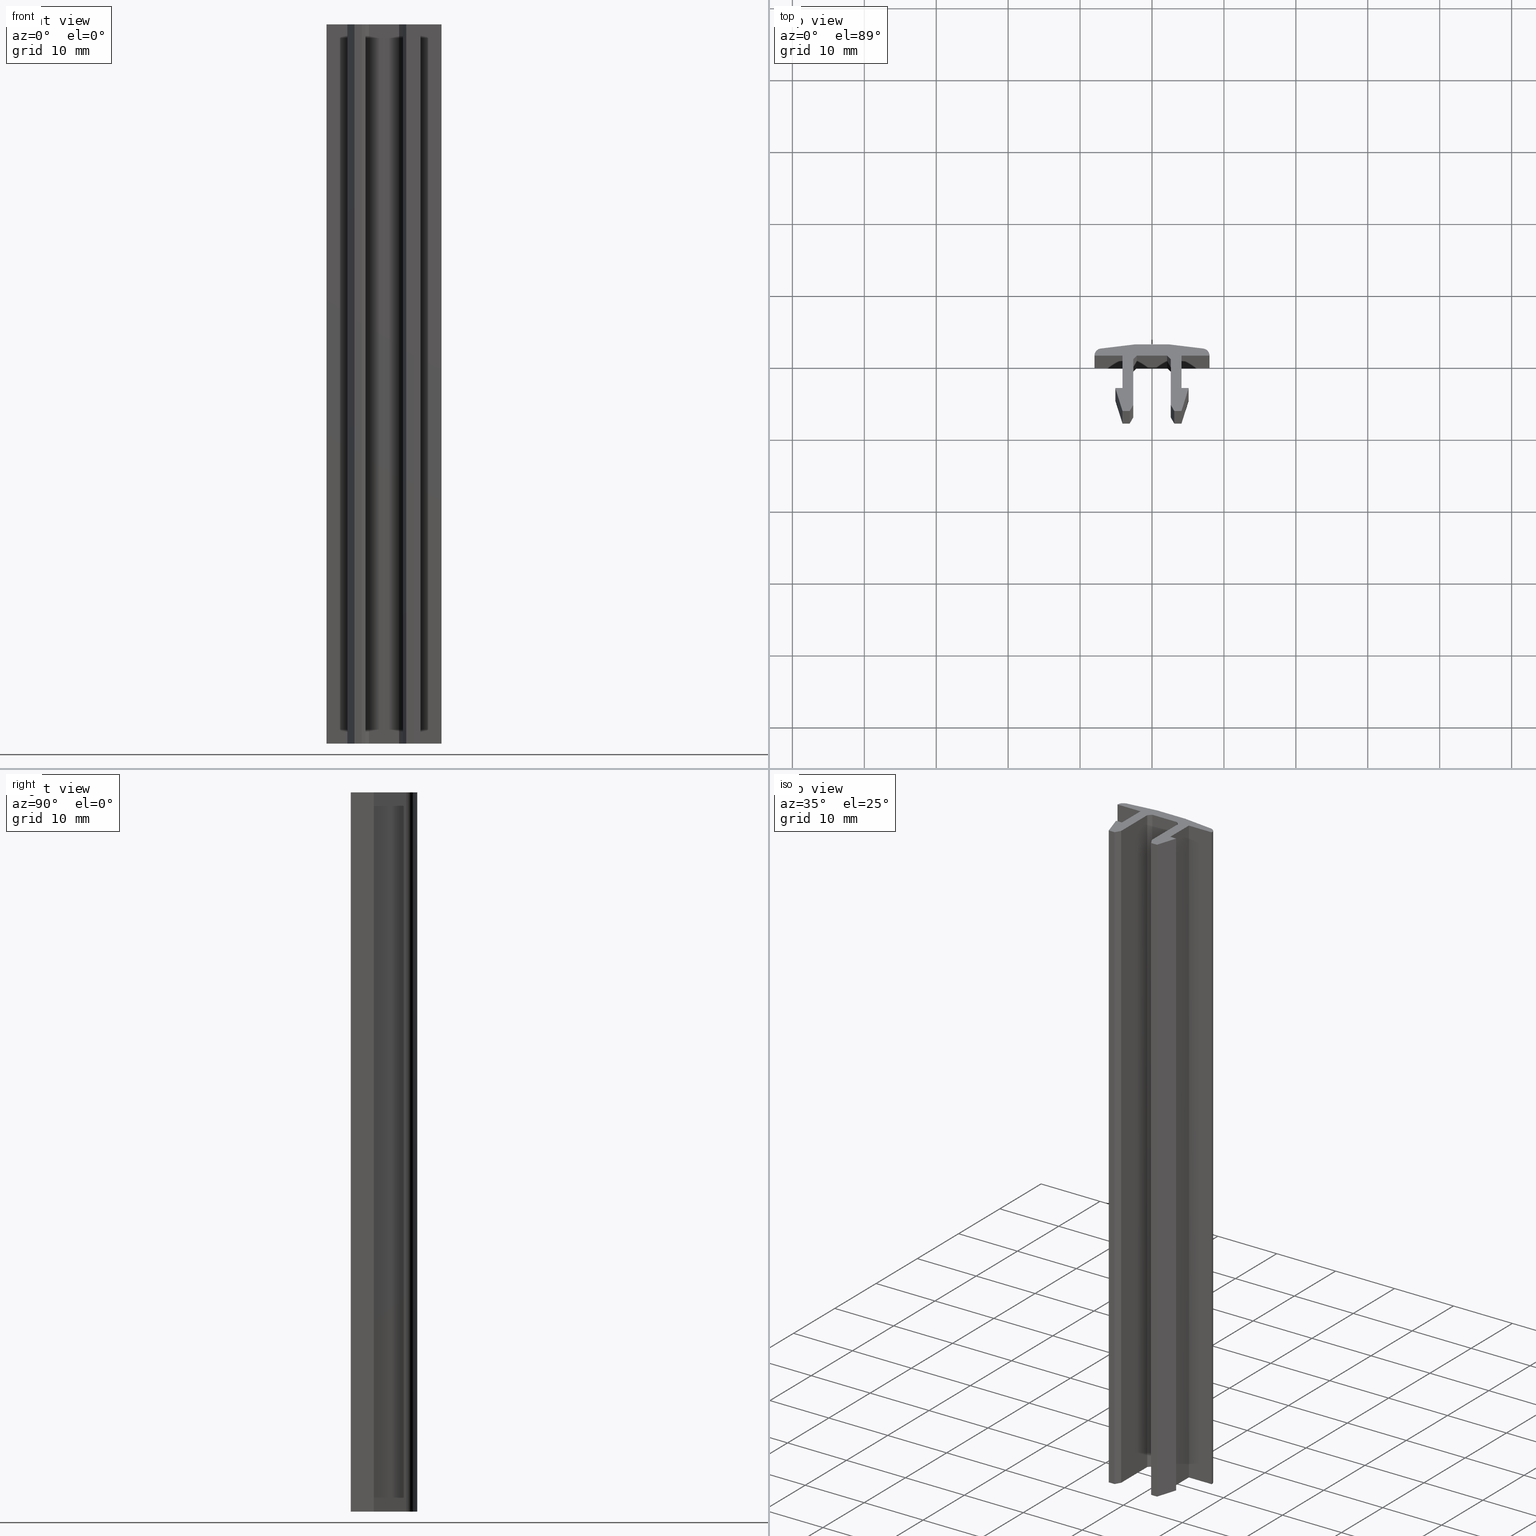
[diagram: canonical four-view strip — front | top / right | iso, engineering-drawing reading convention]
A machine part, canonical four-view strip (front | top / right | iso — engineering-drawing reading convention). The complete STEP part file that produces these views, byte-faithful:
ISO-10303-21;
HEADER;
/* Generated by software containing ST-Developer
 * from STEP Tools, Inc. (www.steptools.com) 
 */

FILE_DESCRIPTION(
/* description */ ('GUARNIZIONE CAVA PER - PVC SEMIRIGIDO GR'),
/* implementation_level */ '2;1');

FILE_NAME(
/* name */ 'C:\\Users\\Tecnico5\\Documents\\CGUCA0000003.stp',
/* time_stamp */ '2020-03-04T11:37:23+01:00',
/* author */ ('tecnico5'),
/* organization */ (''),
/* preprocessor_version */ 'ST-DEVELOPER v17.2',
/* originating_system */ 'Autodesk Inventor 2019',
/* authorisation */ '');

FILE_SCHEMA (('AUTOMOTIVE_DESIGN { 1 0 10303 214 3 1 1 }'));
ENDSEC;

DATA;
#10=MECHANICAL_DESIGN_GEOMETRIC_PRESENTATION_REPRESENTATION('',(#13),#723);
#11=SHAPE_REPRESENTATION_RELATIONSHIP('SRR','None',#730,#12);
#12=ADVANCED_BREP_SHAPE_REPRESENTATION('',(#14),#722);
#13=STYLED_ITEM('',(#739),#14);
#14=MANIFOLD_SOLID_BREP('Solido1',#437);
#15=CIRCLE('',#462,1.);
#16=CIRCLE('',#463,1.);
#17=CIRCLE('',#465,40.);
#18=CIRCLE('',#466,40.);
#19=CIRCLE('',#468,1.);
#20=CIRCLE('',#469,1.);
#21=CYLINDRICAL_SURFACE('',#461,1.);
#22=CYLINDRICAL_SURFACE('',#464,40.);
#23=CYLINDRICAL_SURFACE('',#467,1.);
#24=FACE_OUTER_BOUND('',#46,.T.);
#25=FACE_OUTER_BOUND('',#47,.T.);
#26=FACE_OUTER_BOUND('',#48,.T.);
#27=FACE_OUTER_BOUND('',#49,.T.);
#28=FACE_OUTER_BOUND('',#50,.T.);
#29=FACE_OUTER_BOUND('',#51,.T.);
#30=FACE_OUTER_BOUND('',#52,.T.);
#31=FACE_OUTER_BOUND('',#53,.T.);
#32=FACE_OUTER_BOUND('',#54,.T.);
#33=FACE_OUTER_BOUND('',#55,.T.);
#34=FACE_OUTER_BOUND('',#56,.T.);
#35=FACE_OUTER_BOUND('',#57,.T.);
#36=FACE_OUTER_BOUND('',#58,.T.);
#37=FACE_OUTER_BOUND('',#59,.T.);
#38=FACE_OUTER_BOUND('',#60,.T.);
#39=FACE_OUTER_BOUND('',#61,.T.);
#40=FACE_OUTER_BOUND('',#62,.T.);
#41=FACE_OUTER_BOUND('',#63,.T.);
#42=FACE_OUTER_BOUND('',#64,.T.);
#43=FACE_OUTER_BOUND('',#65,.T.);
#44=FACE_OUTER_BOUND('',#66,.T.);
#45=FACE_OUTER_BOUND('',#67,.T.);
#46=EDGE_LOOP('',(#276,#277,#278,#279));
#47=EDGE_LOOP('',(#280,#281,#282,#283));
#48=EDGE_LOOP('',(#284,#285,#286,#287));
#49=EDGE_LOOP('',(#288,#289,#290,#291));
#50=EDGE_LOOP('',(#292,#293,#294,#295));
#51=EDGE_LOOP('',(#296,#297,#298,#299));
#52=EDGE_LOOP('',(#300,#301,#302,#303));
#53=EDGE_LOOP('',(#304,#305,#306,#307));
#54=EDGE_LOOP('',(#308,#309,#310,#311));
#55=EDGE_LOOP('',(#312,#313,#314,#315));
#56=EDGE_LOOP('',(#316,#317,#318,#319));
#57=EDGE_LOOP('',(#320,#321,#322,#323));
#58=EDGE_LOOP('',(#324,#325,#326,#327));
#59=EDGE_LOOP('',(#328,#329,#330,#331));
#60=EDGE_LOOP('',(#332,#333,#334,#335));
#61=EDGE_LOOP('',(#336,#337,#338,#339));
#62=EDGE_LOOP('',(#340,#341,#342,#343));
#63=EDGE_LOOP('',(#344,#345,#346,#347));
#64=EDGE_LOOP('',(#348,#349,#350,#351));
#65=EDGE_LOOP('',(#352,#353,#354,#355));
#66=EDGE_LOOP('',(#356,#357,#358,#359,#360,#361,#362,#363,#364,#365,#366,
#367,#368,#369,#370,#371,#372,#373,#374,#375));
#67=EDGE_LOOP('',(#376,#377,#378,#379,#380,#381,#382,#383,#384,#385,#386,
#387,#388,#389,#390,#391,#392,#393,#394,#395));
#68=LINE('',#601,#122);
#69=LINE('',#603,#123);
#70=LINE('',#605,#124);
#71=LINE('',#606,#125);
#72=LINE('',#609,#126);
#73=LINE('',#611,#127);
#74=LINE('',#612,#128);
#75=LINE('',#615,#129);
#76=LINE('',#617,#130);
#77=LINE('',#618,#131);
#78=LINE('',#621,#132);
#79=LINE('',#623,#133);
#80=LINE('',#624,#134);
#81=LINE('',#630,#135);
#82=LINE('',#636,#136);
#83=LINE('',#642,#137);
#84=LINE('',#645,#138);
#85=LINE('',#647,#139);
#86=LINE('',#648,#140);
#87=LINE('',#651,#141);
#88=LINE('',#653,#142);
#89=LINE('',#654,#143);
#90=LINE('',#657,#144);
#91=LINE('',#659,#145);
#92=LINE('',#660,#146);
#93=LINE('',#663,#147);
#94=LINE('',#665,#148);
#95=LINE('',#666,#149);
#96=LINE('',#669,#150);
#97=LINE('',#671,#151);
#98=LINE('',#672,#152);
#99=LINE('',#675,#153);
#100=LINE('',#677,#154);
#101=LINE('',#678,#155);
#102=LINE('',#681,#156);
#103=LINE('',#683,#157);
#104=LINE('',#684,#158);
#105=LINE('',#687,#159);
#106=LINE('',#689,#160);
#107=LINE('',#690,#161);
#108=LINE('',#693,#162);
#109=LINE('',#695,#163);
#110=LINE('',#696,#164);
#111=LINE('',#699,#165);
#112=LINE('',#701,#166);
#113=LINE('',#702,#167);
#114=LINE('',#705,#168);
#115=LINE('',#707,#169);
#116=LINE('',#708,#170);
#117=LINE('',#711,#171);
#118=LINE('',#713,#172);
#119=LINE('',#714,#173);
#120=LINE('',#716,#174);
#121=LINE('',#717,#175);
#122=VECTOR('',#489,10.);
#123=VECTOR('',#490,10.);
#124=VECTOR('',#491,10.);
#125=VECTOR('',#492,10.);
#126=VECTOR('',#495,10.);
#127=VECTOR('',#496,10.);
#128=VECTOR('',#497,10.);
#129=VECTOR('',#500,10.);
#130=VECTOR('',#501,10.);
#131=VECTOR('',#502,10.);
#132=VECTOR('',#505,10.);
#133=VECTOR('',#506,10.);
#134=VECTOR('',#507,10.);
#135=VECTOR('',#514,10.);
#136=VECTOR('',#521,10.);
#137=VECTOR('',#528,10.);
#138=VECTOR('',#531,10.);
#139=VECTOR('',#532,10.);
#140=VECTOR('',#533,10.);
#141=VECTOR('',#536,10.);
#142=VECTOR('',#537,10.);
#143=VECTOR('',#538,10.);
#144=VECTOR('',#541,10.);
#145=VECTOR('',#542,10.);
#146=VECTOR('',#543,10.);
#147=VECTOR('',#546,10.);
#148=VECTOR('',#547,10.);
#149=VECTOR('',#548,10.);
#150=VECTOR('',#551,10.);
#151=VECTOR('',#552,10.);
#152=VECTOR('',#553,10.);
#153=VECTOR('',#556,10.);
#154=VECTOR('',#557,10.);
#155=VECTOR('',#558,10.);
#156=VECTOR('',#561,10.);
#157=VECTOR('',#562,10.);
#158=VECTOR('',#563,10.);
#159=VECTOR('',#566,10.);
#160=VECTOR('',#567,10.);
#161=VECTOR('',#568,10.);
#162=VECTOR('',#571,10.);
#163=VECTOR('',#572,10.);
#164=VECTOR('',#573,10.);
#165=VECTOR('',#576,10.);
#166=VECTOR('',#577,10.);
#167=VECTOR('',#578,10.);
#168=VECTOR('',#581,10.);
#169=VECTOR('',#582,10.);
#170=VECTOR('',#583,10.);
#171=VECTOR('',#586,10.);
#172=VECTOR('',#587,10.);
#173=VECTOR('',#588,10.);
#174=VECTOR('',#591,10.);
#175=VECTOR('',#592,10.);
#176=VERTEX_POINT('',#599);
#177=VERTEX_POINT('',#600);
#178=VERTEX_POINT('',#602);
#179=VERTEX_POINT('',#604);
#180=VERTEX_POINT('',#608);
#181=VERTEX_POINT('',#610);
#182=VERTEX_POINT('',#614);
#183=VERTEX_POINT('',#616);
#184=VERTEX_POINT('',#620);
#185=VERTEX_POINT('',#622);
#186=VERTEX_POINT('',#626);
#187=VERTEX_POINT('',#628);
#188=VERTEX_POINT('',#632);
#189=VERTEX_POINT('',#634);
#190=VERTEX_POINT('',#638);
#191=VERTEX_POINT('',#640);
#192=VERTEX_POINT('',#644);
#193=VERTEX_POINT('',#646);
#194=VERTEX_POINT('',#650);
#195=VERTEX_POINT('',#652);
#196=VERTEX_POINT('',#656);
#197=VERTEX_POINT('',#658);
#198=VERTEX_POINT('',#662);
#199=VERTEX_POINT('',#664);
#200=VERTEX_POINT('',#668);
#201=VERTEX_POINT('',#670);
#202=VERTEX_POINT('',#674);
#203=VERTEX_POINT('',#676);
#204=VERTEX_POINT('',#680);
#205=VERTEX_POINT('',#682);
#206=VERTEX_POINT('',#686);
#207=VERTEX_POINT('',#688);
#208=VERTEX_POINT('',#692);
#209=VERTEX_POINT('',#694);
#210=VERTEX_POINT('',#698);
#211=VERTEX_POINT('',#700);
#212=VERTEX_POINT('',#704);
#213=VERTEX_POINT('',#706);
#214=VERTEX_POINT('',#710);
#215=VERTEX_POINT('',#712);
#216=EDGE_CURVE('',#176,#177,#68,.T.);
#217=EDGE_CURVE('',#177,#178,#69,.T.);
#218=EDGE_CURVE('',#179,#178,#70,.T.);
#219=EDGE_CURVE('',#176,#179,#71,.T.);
#220=EDGE_CURVE('',#180,#176,#72,.T.);
#221=EDGE_CURVE('',#181,#179,#73,.T.);
#222=EDGE_CURVE('',#180,#181,#74,.T.);
#223=EDGE_CURVE('',#182,#180,#75,.T.);
#224=EDGE_CURVE('',#183,#181,#76,.T.);
#225=EDGE_CURVE('',#182,#183,#77,.T.);
#226=EDGE_CURVE('',#184,#182,#78,.T.);
#227=EDGE_CURVE('',#185,#183,#79,.T.);
#228=EDGE_CURVE('',#184,#185,#80,.T.);
#229=EDGE_CURVE('',#186,#184,#15,.T.);
#230=EDGE_CURVE('',#187,#185,#16,.T.);
#231=EDGE_CURVE('',#186,#187,#81,.T.);
#232=EDGE_CURVE('',#188,#186,#17,.T.);
#233=EDGE_CURVE('',#189,#187,#18,.T.);
#234=EDGE_CURVE('',#188,#189,#82,.T.);
#235=EDGE_CURVE('',#190,#188,#19,.T.);
#236=EDGE_CURVE('',#191,#189,#20,.T.);
#237=EDGE_CURVE('',#190,#191,#83,.T.);
#238=EDGE_CURVE('',#192,#190,#84,.T.);
#239=EDGE_CURVE('',#193,#191,#85,.T.);
#240=EDGE_CURVE('',#192,#193,#86,.T.);
#241=EDGE_CURVE('',#194,#192,#87,.T.);
#242=EDGE_CURVE('',#195,#193,#88,.T.);
#243=EDGE_CURVE('',#194,#195,#89,.T.);
#244=EDGE_CURVE('',#196,#194,#90,.T.);
#245=EDGE_CURVE('',#197,#195,#91,.T.);
#246=EDGE_CURVE('',#196,#197,#92,.T.);
#247=EDGE_CURVE('',#198,#196,#93,.T.);
#248=EDGE_CURVE('',#199,#197,#94,.T.);
#249=EDGE_CURVE('',#198,#199,#95,.T.);
#250=EDGE_CURVE('',#200,#198,#96,.T.);
#251=EDGE_CURVE('',#201,#199,#97,.T.);
#252=EDGE_CURVE('',#200,#201,#98,.T.);
#253=EDGE_CURVE('',#202,#200,#99,.T.);
#254=EDGE_CURVE('',#203,#201,#100,.T.);
#255=EDGE_CURVE('',#202,#203,#101,.T.);
#256=EDGE_CURVE('',#204,#202,#102,.T.);
#257=EDGE_CURVE('',#205,#203,#103,.T.);
#258=EDGE_CURVE('',#204,#205,#104,.T.);
#259=EDGE_CURVE('',#206,#204,#105,.T.);
#260=EDGE_CURVE('',#207,#205,#106,.T.);
#261=EDGE_CURVE('',#206,#207,#107,.T.);
#262=EDGE_CURVE('',#208,#206,#108,.T.);
#263=EDGE_CURVE('',#209,#207,#109,.T.);
#264=EDGE_CURVE('',#208,#209,#110,.T.);
#265=EDGE_CURVE('',#210,#208,#111,.T.);
#266=EDGE_CURVE('',#211,#209,#112,.T.);
#267=EDGE_CURVE('',#210,#211,#113,.T.);
#268=EDGE_CURVE('',#212,#210,#114,.T.);
#269=EDGE_CURVE('',#213,#211,#115,.T.);
#270=EDGE_CURVE('',#212,#213,#116,.T.);
#271=EDGE_CURVE('',#214,#212,#117,.T.);
#272=EDGE_CURVE('',#215,#213,#118,.T.);
#273=EDGE_CURVE('',#214,#215,#119,.T.);
#274=EDGE_CURVE('',#177,#214,#120,.T.);
#275=EDGE_CURVE('',#178,#215,#121,.T.);
#276=ORIENTED_EDGE('',*,*,#216,.T.);
#277=ORIENTED_EDGE('',*,*,#217,.T.);
#278=ORIENTED_EDGE('',*,*,#218,.F.);
#279=ORIENTED_EDGE('',*,*,#219,.F.);
#280=ORIENTED_EDGE('',*,*,#220,.T.);
#281=ORIENTED_EDGE('',*,*,#219,.T.);
#282=ORIENTED_EDGE('',*,*,#221,.F.);
#283=ORIENTED_EDGE('',*,*,#222,.F.);
#284=ORIENTED_EDGE('',*,*,#223,.T.);
#285=ORIENTED_EDGE('',*,*,#222,.T.);
#286=ORIENTED_EDGE('',*,*,#224,.F.);
#287=ORIENTED_EDGE('',*,*,#225,.F.);
#288=ORIENTED_EDGE('',*,*,#226,.T.);
#289=ORIENTED_EDGE('',*,*,#225,.T.);
#290=ORIENTED_EDGE('',*,*,#227,.F.);
#291=ORIENTED_EDGE('',*,*,#228,.F.);
#292=ORIENTED_EDGE('',*,*,#229,.T.);
#293=ORIENTED_EDGE('',*,*,#228,.T.);
#294=ORIENTED_EDGE('',*,*,#230,.F.);
#295=ORIENTED_EDGE('',*,*,#231,.F.);
#296=ORIENTED_EDGE('',*,*,#232,.T.);
#297=ORIENTED_EDGE('',*,*,#231,.T.);
#298=ORIENTED_EDGE('',*,*,#233,.F.);
#299=ORIENTED_EDGE('',*,*,#234,.F.);
#300=ORIENTED_EDGE('',*,*,#235,.T.);
#301=ORIENTED_EDGE('',*,*,#234,.T.);
#302=ORIENTED_EDGE('',*,*,#236,.F.);
#303=ORIENTED_EDGE('',*,*,#237,.F.);
#304=ORIENTED_EDGE('',*,*,#238,.T.);
#305=ORIENTED_EDGE('',*,*,#237,.T.);
#306=ORIENTED_EDGE('',*,*,#239,.F.);
#307=ORIENTED_EDGE('',*,*,#240,.F.);
#308=ORIENTED_EDGE('',*,*,#241,.T.);
#309=ORIENTED_EDGE('',*,*,#240,.T.);
#310=ORIENTED_EDGE('',*,*,#242,.F.);
#311=ORIENTED_EDGE('',*,*,#243,.F.);
#312=ORIENTED_EDGE('',*,*,#244,.T.);
#313=ORIENTED_EDGE('',*,*,#243,.T.);
#314=ORIENTED_EDGE('',*,*,#245,.F.);
#315=ORIENTED_EDGE('',*,*,#246,.F.);
#316=ORIENTED_EDGE('',*,*,#247,.T.);
#317=ORIENTED_EDGE('',*,*,#246,.T.);
#318=ORIENTED_EDGE('',*,*,#248,.F.);
#319=ORIENTED_EDGE('',*,*,#249,.F.);
#320=ORIENTED_EDGE('',*,*,#250,.T.);
#321=ORIENTED_EDGE('',*,*,#249,.T.);
#322=ORIENTED_EDGE('',*,*,#251,.F.);
#323=ORIENTED_EDGE('',*,*,#252,.F.);
#324=ORIENTED_EDGE('',*,*,#253,.T.);
#325=ORIENTED_EDGE('',*,*,#252,.T.);
#326=ORIENTED_EDGE('',*,*,#254,.F.);
#327=ORIENTED_EDGE('',*,*,#255,.F.);
#328=ORIENTED_EDGE('',*,*,#256,.T.);
#329=ORIENTED_EDGE('',*,*,#255,.T.);
#330=ORIENTED_EDGE('',*,*,#257,.F.);
#331=ORIENTED_EDGE('',*,*,#258,.F.);
#332=ORIENTED_EDGE('',*,*,#259,.T.);
#333=ORIENTED_EDGE('',*,*,#258,.T.);
#334=ORIENTED_EDGE('',*,*,#260,.F.);
#335=ORIENTED_EDGE('',*,*,#261,.F.);
#336=ORIENTED_EDGE('',*,*,#262,.T.);
#337=ORIENTED_EDGE('',*,*,#261,.T.);
#338=ORIENTED_EDGE('',*,*,#263,.F.);
#339=ORIENTED_EDGE('',*,*,#264,.F.);
#340=ORIENTED_EDGE('',*,*,#265,.T.);
#341=ORIENTED_EDGE('',*,*,#264,.T.);
#342=ORIENTED_EDGE('',*,*,#266,.F.);
#343=ORIENTED_EDGE('',*,*,#267,.F.);
#344=ORIENTED_EDGE('',*,*,#268,.T.);
#345=ORIENTED_EDGE('',*,*,#267,.T.);
#346=ORIENTED_EDGE('',*,*,#269,.F.);
#347=ORIENTED_EDGE('',*,*,#270,.F.);
#348=ORIENTED_EDGE('',*,*,#271,.T.);
#349=ORIENTED_EDGE('',*,*,#270,.T.);
#350=ORIENTED_EDGE('',*,*,#272,.F.);
#351=ORIENTED_EDGE('',*,*,#273,.F.);
#352=ORIENTED_EDGE('',*,*,#274,.T.);
#353=ORIENTED_EDGE('',*,*,#273,.T.);
#354=ORIENTED_EDGE('',*,*,#275,.F.);
#355=ORIENTED_EDGE('',*,*,#217,.F.);
#356=ORIENTED_EDGE('',*,*,#275,.T.);
#357=ORIENTED_EDGE('',*,*,#272,.T.);
#358=ORIENTED_EDGE('',*,*,#269,.T.);
#359=ORIENTED_EDGE('',*,*,#266,.T.);
#360=ORIENTED_EDGE('',*,*,#263,.T.);
#361=ORIENTED_EDGE('',*,*,#260,.T.);
#362=ORIENTED_EDGE('',*,*,#257,.T.);
#363=ORIENTED_EDGE('',*,*,#254,.T.);
#364=ORIENTED_EDGE('',*,*,#251,.T.);
#365=ORIENTED_EDGE('',*,*,#248,.T.);
#366=ORIENTED_EDGE('',*,*,#245,.T.);
#367=ORIENTED_EDGE('',*,*,#242,.T.);
#368=ORIENTED_EDGE('',*,*,#239,.T.);
#369=ORIENTED_EDGE('',*,*,#236,.T.);
#370=ORIENTED_EDGE('',*,*,#233,.T.);
#371=ORIENTED_EDGE('',*,*,#230,.T.);
#372=ORIENTED_EDGE('',*,*,#227,.T.);
#373=ORIENTED_EDGE('',*,*,#224,.T.);
#374=ORIENTED_EDGE('',*,*,#221,.T.);
#375=ORIENTED_EDGE('',*,*,#218,.T.);
#376=ORIENTED_EDGE('',*,*,#274,.F.);
#377=ORIENTED_EDGE('',*,*,#216,.F.);
#378=ORIENTED_EDGE('',*,*,#220,.F.);
#379=ORIENTED_EDGE('',*,*,#223,.F.);
#380=ORIENTED_EDGE('',*,*,#226,.F.);
#381=ORIENTED_EDGE('',*,*,#229,.F.);
#382=ORIENTED_EDGE('',*,*,#232,.F.);
#383=ORIENTED_EDGE('',*,*,#235,.F.);
#384=ORIENTED_EDGE('',*,*,#238,.F.);
#385=ORIENTED_EDGE('',*,*,#241,.F.);
#386=ORIENTED_EDGE('',*,*,#244,.F.);
#387=ORIENTED_EDGE('',*,*,#247,.F.);
#388=ORIENTED_EDGE('',*,*,#250,.F.);
#389=ORIENTED_EDGE('',*,*,#253,.F.);
#390=ORIENTED_EDGE('',*,*,#256,.F.);
#391=ORIENTED_EDGE('',*,*,#259,.F.);
#392=ORIENTED_EDGE('',*,*,#262,.F.);
#393=ORIENTED_EDGE('',*,*,#265,.F.);
#394=ORIENTED_EDGE('',*,*,#268,.F.);
#395=ORIENTED_EDGE('',*,*,#271,.F.);
#396=PLANE('',#457);
#397=PLANE('',#458);
#398=PLANE('',#459);
#399=PLANE('',#460);
#400=PLANE('',#470);
#401=PLANE('',#471);
#402=PLANE('',#472);
#403=PLANE('',#473);
#404=PLANE('',#474);
#405=PLANE('',#475);
#406=PLANE('',#476);
#407=PLANE('',#477);
#408=PLANE('',#478);
#409=PLANE('',#479);
#410=PLANE('',#480);
#411=PLANE('',#481);
#412=PLANE('',#482);
#413=PLANE('',#483);
#414=PLANE('',#484);
#415=ADVANCED_FACE('',(#24),#396,.T.);
#416=ADVANCED_FACE('',(#25),#397,.T.);
#417=ADVANCED_FACE('',(#26),#398,.T.);
#418=ADVANCED_FACE('',(#27),#399,.T.);
#419=ADVANCED_FACE('',(#28),#21,.T.);
#420=ADVANCED_FACE('',(#29),#22,.T.);
#421=ADVANCED_FACE('',(#30),#23,.T.);
#422=ADVANCED_FACE('',(#31),#400,.T.);
#423=ADVANCED_FACE('',(#32),#401,.T.);
#424=ADVANCED_FACE('',(#33),#402,.T.);
#425=ADVANCED_FACE('',(#34),#403,.T.);
#426=ADVANCED_FACE('',(#35),#404,.T.);
#427=ADVANCED_FACE('',(#36),#405,.T.);
#428=ADVANCED_FACE('',(#37),#406,.T.);
#429=ADVANCED_FACE('',(#38),#407,.T.);
#430=ADVANCED_FACE('',(#39),#408,.T.);
#431=ADVANCED_FACE('',(#40),#409,.T.);
#432=ADVANCED_FACE('',(#41),#410,.T.);
#433=ADVANCED_FACE('',(#42),#411,.T.);
#434=ADVANCED_FACE('',(#43),#412,.T.);
#435=ADVANCED_FACE('',(#44),#413,.T.);
#436=ADVANCED_FACE('',(#45),#414,.F.);
#437=CLOSED_SHELL('',(#415,#416,#417,#418,#419,#420,#421,#422,#423,#424,
#425,#426,#427,#428,#429,#430,#431,#432,#433,#434,#435,#436));
#438=DERIVED_UNIT_ELEMENT(#440,1.);
#439=DERIVED_UNIT_ELEMENT(#725,3.);
#440=(
MASS_UNIT()
NAMED_UNIT(*)
SI_UNIT($,.GRAM.)
);
#441=DERIVED_UNIT((#438,#439));
#442=MEASURE_REPRESENTATION_ITEM('density measure',
POSITIVE_RATIO_MEASURE(0.5),#441);
#443=PROPERTY_DEFINITION_REPRESENTATION(#448,#445);
#444=PROPERTY_DEFINITION_REPRESENTATION(#449,#446);
#445=REPRESENTATION('material name',(#447),#722);
#446=REPRESENTATION('density',(#442),#722);
#447=DESCRIPTIVE_REPRESENTATION_ITEM('PVC Grigio','PVC Grigio');
#448=PROPERTY_DEFINITION('material property','material name',#732);
#449=PROPERTY_DEFINITION('material property','density of part',#732);
#450=DATE_TIME_ROLE('creation_date');
#451=APPLIED_DATE_AND_TIME_ASSIGNMENT(#452,#450,(#732));
#452=DATE_AND_TIME(#453,#454);
#453=CALENDAR_DATE(2017,17,7);
#454=LOCAL_TIME(15,11,31.,#455);
#455=COORDINATED_UNIVERSAL_TIME_OFFSET(0,0,.BEHIND.);
#456=AXIS2_PLACEMENT_3D('placement',#597,#485,#486);
#457=AXIS2_PLACEMENT_3D('',#598,#487,#488);
#458=AXIS2_PLACEMENT_3D('',#607,#493,#494);
#459=AXIS2_PLACEMENT_3D('',#613,#498,#499);
#460=AXIS2_PLACEMENT_3D('',#619,#503,#504);
#461=AXIS2_PLACEMENT_3D('',#625,#508,#509);
#462=AXIS2_PLACEMENT_3D('',#627,#510,#511);
#463=AXIS2_PLACEMENT_3D('',#629,#512,#513);
#464=AXIS2_PLACEMENT_3D('',#631,#515,#516);
#465=AXIS2_PLACEMENT_3D('',#633,#517,#518);
#466=AXIS2_PLACEMENT_3D('',#635,#519,#520);
#467=AXIS2_PLACEMENT_3D('',#637,#522,#523);
#468=AXIS2_PLACEMENT_3D('',#639,#524,#525);
#469=AXIS2_PLACEMENT_3D('',#641,#526,#527);
#470=AXIS2_PLACEMENT_3D('',#643,#529,#530);
#471=AXIS2_PLACEMENT_3D('',#649,#534,#535);
#472=AXIS2_PLACEMENT_3D('',#655,#539,#540);
#473=AXIS2_PLACEMENT_3D('',#661,#544,#545);
#474=AXIS2_PLACEMENT_3D('',#667,#549,#550);
#475=AXIS2_PLACEMENT_3D('',#673,#554,#555);
#476=AXIS2_PLACEMENT_3D('',#679,#559,#560);
#477=AXIS2_PLACEMENT_3D('',#685,#564,#565);
#478=AXIS2_PLACEMENT_3D('',#691,#569,#570);
#479=AXIS2_PLACEMENT_3D('',#697,#574,#575);
#480=AXIS2_PLACEMENT_3D('',#703,#579,#580);
#481=AXIS2_PLACEMENT_3D('',#709,#584,#585);
#482=AXIS2_PLACEMENT_3D('',#715,#589,#590);
#483=AXIS2_PLACEMENT_3D('',#718,#593,#594);
#484=AXIS2_PLACEMENT_3D('',#719,#595,#596);
#485=DIRECTION('axis',(0.,0.,1.));
#486=DIRECTION('refdir',(1.,0.,0.));
#487=DIRECTION('center_axis',(-0.95447997803503,-0.298274993135947,0.));
#488=DIRECTION('ref_axis',(0.298274993135947,-0.95447997803503,0.));
#489=DIRECTION('',(0.298274993135947,-0.95447997803503,0.));
#490=DIRECTION('',(0.,0.,1.));
#491=DIRECTION('',(0.298274993135947,-0.95447997803503,0.));
#492=DIRECTION('',(0.,0.,1.));
#493=DIRECTION('center_axis',(-1.66533453693774E-15,1.,0.));
#494=DIRECTION('ref_axis',(-1.,-1.66533453693774E-15,0.));
#495=DIRECTION('',(-1.,-1.66533453693774E-15,0.));
#496=DIRECTION('',(-1.,-1.66533453693774E-15,0.));
#497=DIRECTION('',(0.,0.,1.));
#498=DIRECTION('center_axis',(-1.,-2.46716227694479E-16,0.));
#499=DIRECTION('ref_axis',(2.46716227694479E-16,-1.,0.));
#500=DIRECTION('',(2.46716227694479E-16,-1.,0.));
#501=DIRECTION('',(2.46716227694479E-16,-1.,0.));
#502=DIRECTION('',(0.,0.,1.));
#503=DIRECTION('center_axis',(-1.43332612400156E-15,-1.,0.));
#504=DIRECTION('ref_axis',(1.,-1.43332612400156E-15,0.));
#505=DIRECTION('',(1.,-1.43332612400156E-15,0.));
#506=DIRECTION('',(1.,-1.43332612400156E-15,0.));
#507=DIRECTION('',(0.,0.,1.));
#508=DIRECTION('center_axis',(0.,0.,1.));
#509=DIRECTION('ref_axis',(-0.179487179487179,0.983760312474404,0.));
#510=DIRECTION('center_axis',(0.,0.,1.));
#511=DIRECTION('ref_axis',(-0.179487179487179,0.983760312474404,0.));
#512=DIRECTION('center_axis',(0.,0.,1.));
#513=DIRECTION('ref_axis',(-0.179487179487179,0.983760312474404,0.));
#514=DIRECTION('',(0.,0.,1.));
#515=DIRECTION('center_axis',(0.,0.,1.));
#516=DIRECTION('ref_axis',(0.179487179487179,0.983760312474404,0.));
#517=DIRECTION('center_axis',(0.,0.,1.));
#518=DIRECTION('ref_axis',(0.179487179487179,0.983760312474404,0.));
#519=DIRECTION('center_axis',(0.,0.,1.));
#520=DIRECTION('ref_axis',(0.179487179487179,0.983760312474404,0.));
#521=DIRECTION('',(0.,0.,1.));
#522=DIRECTION('center_axis',(0.,0.,1.));
#523=DIRECTION('ref_axis',(1.,-3.47921504932565E-17,0.));
#524=DIRECTION('center_axis',(0.,0.,1.));
#525=DIRECTION('ref_axis',(1.,-3.47921504932565E-17,0.));
#526=DIRECTION('center_axis',(0.,0.,1.));
#527=DIRECTION('ref_axis',(1.,-3.47921504932565E-17,0.));
#528=DIRECTION('',(0.,0.,1.));
#529=DIRECTION('center_axis',(9.35039180993754E-16,-1.,0.));
#530=DIRECTION('ref_axis',(1.,9.35039180993754E-16,0.));
#531=DIRECTION('',(1.,9.35039180993754E-16,0.));
#532=DIRECTION('',(1.,9.35039180993754E-16,0.));
#533=DIRECTION('',(0.,0.,1.));
#534=DIRECTION('center_axis',(1.,2.46716227694479E-16,0.));
#535=DIRECTION('ref_axis',(-2.46716227694479E-16,1.,0.));
#536=DIRECTION('',(-2.46716227694479E-16,1.,0.));
#537=DIRECTION('',(-2.46716227694479E-16,1.,0.));
#538=DIRECTION('',(0.,0.,1.));
#539=DIRECTION('center_axis',(-5.55111512312578E-16,1.,0.));
#540=DIRECTION('ref_axis',(-1.,-5.55111512312578E-16,0.));
#541=DIRECTION('',(-1.,-5.55111512312578E-16,0.));
#542=DIRECTION('',(-1.,-5.55111512312578E-16,0.));
#543=DIRECTION('',(0.,0.,1.));
#544=DIRECTION('center_axis',(0.95447997803503,-0.298274993135946,0.));
#545=DIRECTION('ref_axis',(0.298274993135946,0.95447997803503,0.));
#546=DIRECTION('',(0.298274993135946,0.95447997803503,0.));
#547=DIRECTION('',(0.298274993135946,0.95447997803503,0.));
#548=DIRECTION('',(0.,0.,1.));
#549=DIRECTION('center_axis',(1.11022302462516E-15,-1.,0.));
#550=DIRECTION('ref_axis',(1.,1.11022302462516E-15,0.));
#551=DIRECTION('',(1.,1.11022302462516E-15,0.));
#552=DIRECTION('',(1.,1.11022302462516E-15,0.));
#553=DIRECTION('',(0.,0.,1.));
#554=DIRECTION('center_axis',(-0.866025403784439,-0.5,0.));
#555=DIRECTION('ref_axis',(0.5,-0.866025403784438,0.));
#556=DIRECTION('',(0.5,-0.866025403784438,0.));
#557=DIRECTION('',(0.5,-0.866025403784438,0.));
#558=DIRECTION('',(0.,0.,1.));
#559=DIRECTION('center_axis',(-1.,-2.62920937184172E-16,0.));
#560=DIRECTION('ref_axis',(2.62920937184172E-16,-1.,0.));
#561=DIRECTION('',(2.62920937184172E-16,-1.,0.));
#562=DIRECTION('',(2.62920937184172E-16,-1.,0.));
#563=DIRECTION('',(0.,0.,1.));
#564=DIRECTION('center_axis',(-0.707106781186547,-0.707106781186548,0.));
#565=DIRECTION('ref_axis',(0.707106781186548,-0.707106781186547,0.));
#566=DIRECTION('',(0.707106781186548,-0.707106781186547,0.));
#567=DIRECTION('',(0.707106781186548,-0.707106781186547,0.));
#568=DIRECTION('',(0.,0.,1.));
#569=DIRECTION('center_axis',(-1.46737519572361E-32,-1.,0.));
#570=DIRECTION('ref_axis',(1.,-1.46737519572361E-32,0.));
#571=DIRECTION('',(1.,-1.46737519572361E-32,0.));
#572=DIRECTION('',(1.,-1.46737519572361E-32,0.));
#573=DIRECTION('',(0.,0.,1.));
#574=DIRECTION('center_axis',(0.707106781186547,-0.707106781186548,0.));
#575=DIRECTION('ref_axis',(0.707106781186548,0.707106781186547,0.));
#576=DIRECTION('',(0.707106781186548,0.707106781186547,0.));
#577=DIRECTION('',(0.707106781186548,0.707106781186547,0.));
#578=DIRECTION('',(0.,0.,1.));
#579=DIRECTION('center_axis',(1.,1.75280624789448E-16,0.));
#580=DIRECTION('ref_axis',(-1.75280624789448E-16,1.,0.));
#581=DIRECTION('',(-1.75280624789448E-16,1.,0.));
#582=DIRECTION('',(-1.75280624789448E-16,1.,0.));
#583=DIRECTION('',(0.,0.,1.));
#584=DIRECTION('center_axis',(0.866025403784439,-0.499999999999999,0.));
#585=DIRECTION('ref_axis',(0.499999999999999,0.866025403784439,0.));
#586=DIRECTION('',(0.499999999999999,0.866025403784439,0.));
#587=DIRECTION('',(0.499999999999999,0.866025403784439,0.));
#588=DIRECTION('',(0.,0.,1.));
#589=DIRECTION('center_axis',(0.,-1.,0.));
#590=DIRECTION('ref_axis',(1.,0.,0.));
#591=DIRECTION('',(1.,0.,0.));
#592=DIRECTION('',(1.,0.,0.));
#593=DIRECTION('center_axis',(0.,0.,1.));
#594=DIRECTION('ref_axis',(1.,0.,0.));
#595=DIRECTION('center_axis',(0.,0.,1.));
#596=DIRECTION('ref_axis',(1.,0.,0.));
#597=CARTESIAN_POINT('',(0.,0.,0.));
#598=CARTESIAN_POINT('Origin',(-5.1,-4.5,0.));
#599=CARTESIAN_POINT('',(-5.1,-4.5,0.));
#600=CARTESIAN_POINT('',(-4.1,-7.7,0.));
#601=CARTESIAN_POINT('',(-5.1,-4.5,0.));
#602=CARTESIAN_POINT('',(-4.1,-7.7,100.));
#603=CARTESIAN_POINT('',(-4.1,-7.7,0.));
#604=CARTESIAN_POINT('',(-5.1,-4.5,100.));
#605=CARTESIAN_POINT('',(-5.1,-4.5,100.));
#606=CARTESIAN_POINT('',(-5.1,-4.5,0.));
#607=CARTESIAN_POINT('Origin',(-4.1,-4.5,0.));
#608=CARTESIAN_POINT('',(-4.1,-4.5,0.));
#609=CARTESIAN_POINT('',(-4.1,-4.5,0.));
#610=CARTESIAN_POINT('',(-4.1,-4.5,100.));
#611=CARTESIAN_POINT('',(-4.1,-4.5,100.));
#612=CARTESIAN_POINT('',(-4.1,-4.5,0.));
#613=CARTESIAN_POINT('Origin',(-4.1,-1.11022302462516E-15,0.));
#614=CARTESIAN_POINT('',(-4.1,-1.11022302462516E-15,0.));
#615=CARTESIAN_POINT('',(-4.1,-1.11022302462516E-15,0.));
#616=CARTESIAN_POINT('',(-4.1,-1.11022302462516E-15,100.));
#617=CARTESIAN_POINT('',(-4.1,-1.11022302462516E-15,100.));
#618=CARTESIAN_POINT('',(-4.1,-1.11022302462516E-15,0.));
#619=CARTESIAN_POINT('Origin',(-8.00000000000001,4.47974885898094E-15,0.));
#620=CARTESIAN_POINT('',(-8.00000000000001,4.47974885898094E-15,0.));
#621=CARTESIAN_POINT('',(-8.00000000000001,4.47974885898094E-15,0.));
#622=CARTESIAN_POINT('',(-8.00000000000001,4.44089209850063E-15,100.));
#623=CARTESIAN_POINT('',(-8.00000000000001,4.47974885898094E-15,100.));
#624=CARTESIAN_POINT('',(-8.00000000000001,4.47974885898094E-15,0.));
#625=CARTESIAN_POINT('Origin',(-7.00000000000001,4.51411222483776E-15,0.));
#626=CARTESIAN_POINT('',(-7.17948717948719,0.983760312474405,0.));
#627=CARTESIAN_POINT('Origin',(-7.00000000000001,4.51411222483776E-15,0.));
#628=CARTESIAN_POINT('',(-7.17948717948719,0.983760312474405,100.));
#629=CARTESIAN_POINT('Origin',(-7.00000000000001,4.51411222483776E-15,100.));
#630=CARTESIAN_POINT('',(-7.17948717948719,0.983760312474405,0.));
#631=CARTESIAN_POINT('Origin',(-2.4459601011273E-15,-38.3666521865018,0.));
#632=CARTESIAN_POINT('',(7.17948717948717,0.983760312474409,0.));
#633=CARTESIAN_POINT('Origin',(-2.4459601011273E-15,-38.3666521865018,0.));
#634=CARTESIAN_POINT('',(7.17948717948717,0.983760312474409,100.));
#635=CARTESIAN_POINT('Origin',(-2.4459601011273E-15,-38.3666521865018,100.));
#636=CARTESIAN_POINT('',(7.17948717948717,0.983760312474409,0.));
#637=CARTESIAN_POINT('Origin',(6.99999999999999,4.51411222483776E-15,0.));
#638=CARTESIAN_POINT('',(7.99999999999999,4.4793200743445E-15,0.));
#639=CARTESIAN_POINT('Origin',(6.99999999999999,4.51411222483776E-15,0.));
#640=CARTESIAN_POINT('',(7.99999999999999,4.44089209850063E-15,100.));
#641=CARTESIAN_POINT('Origin',(6.99999999999999,4.51411222483776E-15,100.));
#642=CARTESIAN_POINT('',(7.99999999999999,4.4793200743445E-15,0.));
#643=CARTESIAN_POINT('Origin',(4.1,8.32667268468867E-16,0.));
#644=CARTESIAN_POINT('',(4.1,8.32667268468867E-16,0.));
#645=CARTESIAN_POINT('',(4.1,8.32667268468867E-16,0.));
#646=CARTESIAN_POINT('',(4.1,1.11022302462516E-15,100.));
#647=CARTESIAN_POINT('',(4.1,8.32667268468867E-16,100.));
#648=CARTESIAN_POINT('',(4.1,8.32667268468867E-16,0.));
#649=CARTESIAN_POINT('Origin',(4.1,-4.5,0.));
#650=CARTESIAN_POINT('',(4.1,-4.5,0.));
#651=CARTESIAN_POINT('',(4.1,-4.5,0.));
#652=CARTESIAN_POINT('',(4.1,-4.5,100.));
#653=CARTESIAN_POINT('',(4.1,-4.5,100.));
#654=CARTESIAN_POINT('',(4.1,-4.5,0.));
#655=CARTESIAN_POINT('Origin',(5.1,-4.5,0.));
#656=CARTESIAN_POINT('',(5.1,-4.5,0.));
#657=CARTESIAN_POINT('',(5.1,-4.5,0.));
#658=CARTESIAN_POINT('',(5.1,-4.5,100.));
#659=CARTESIAN_POINT('',(5.1,-4.5,100.));
#660=CARTESIAN_POINT('',(5.1,-4.5,0.));
#661=CARTESIAN_POINT('Origin',(4.1,-7.7,0.));
#662=CARTESIAN_POINT('',(4.1,-7.7,0.));
#663=CARTESIAN_POINT('',(4.1,-7.7,0.));
#664=CARTESIAN_POINT('',(4.1,-7.7,100.));
#665=CARTESIAN_POINT('',(4.1,-7.7,100.));
#666=CARTESIAN_POINT('',(4.1,-7.7,0.));
#667=CARTESIAN_POINT('Origin',(3.1,-7.7,0.));
#668=CARTESIAN_POINT('',(3.1,-7.7,0.));
#669=CARTESIAN_POINT('',(3.1,-7.7,0.));
#670=CARTESIAN_POINT('',(3.1,-7.7,100.));
#671=CARTESIAN_POINT('',(3.1,-7.7,100.));
#672=CARTESIAN_POINT('',(3.1,-7.7,0.));
#673=CARTESIAN_POINT('Origin',(2.6,-6.83397459621556,0.));
#674=CARTESIAN_POINT('',(2.6,-6.83397459621556,0.));
#675=CARTESIAN_POINT('',(2.6,-6.83397459621556,0.));
#676=CARTESIAN_POINT('',(2.6,-6.83397459621556,100.));
#677=CARTESIAN_POINT('',(2.6,-6.83397459621556,100.));
#678=CARTESIAN_POINT('',(2.6,-6.83397459621556,0.));
#679=CARTESIAN_POINT('Origin',(2.6,-0.499999999999999,0.));
#680=CARTESIAN_POINT('',(2.6,-0.499999999999999,0.));
#681=CARTESIAN_POINT('',(2.6,-0.499999999999999,0.));
#682=CARTESIAN_POINT('',(2.6,-0.499999999999999,100.));
#683=CARTESIAN_POINT('',(2.6,-0.499999999999999,100.));
#684=CARTESIAN_POINT('',(2.6,-0.499999999999999,0.));
#685=CARTESIAN_POINT('Origin',(2.1,-3.22074266389916E-16,0.));
#686=CARTESIAN_POINT('',(2.1,-3.22074266389916E-16,0.));
#687=CARTESIAN_POINT('',(2.1,-3.22074266389916E-16,0.));
#688=CARTESIAN_POINT('',(2.1,0.,100.));
#689=CARTESIAN_POINT('',(2.1,-3.22074266389916E-16,100.));
#690=CARTESIAN_POINT('',(2.1,-3.22074266389916E-16,0.));
#691=CARTESIAN_POINT('Origin',(-2.1,-3.22074266389916E-16,0.));
#692=CARTESIAN_POINT('',(-2.1,-3.22074266389916E-16,0.));
#693=CARTESIAN_POINT('',(-2.1,-3.22074266389916E-16,0.));
#694=CARTESIAN_POINT('',(-2.1,0.,100.));
#695=CARTESIAN_POINT('',(-2.1,-3.22074266389916E-16,100.));
#696=CARTESIAN_POINT('',(-2.1,-3.22074266389916E-16,0.));
#697=CARTESIAN_POINT('Origin',(-2.6,-0.499999999999999,0.));
#698=CARTESIAN_POINT('',(-2.6,-0.499999999999999,0.));
#699=CARTESIAN_POINT('',(-2.6,-0.499999999999999,0.));
#700=CARTESIAN_POINT('',(-2.6,-0.499999999999999,100.));
#701=CARTESIAN_POINT('',(-2.6,-0.499999999999999,100.));
#702=CARTESIAN_POINT('',(-2.6,-0.499999999999999,0.));
#703=CARTESIAN_POINT('Origin',(-2.6,-6.83397459621556,0.));
#704=CARTESIAN_POINT('',(-2.6,-6.83397459621556,0.));
#705=CARTESIAN_POINT('',(-2.6,-6.83397459621556,0.));
#706=CARTESIAN_POINT('',(-2.6,-6.83397459621556,100.));
#707=CARTESIAN_POINT('',(-2.6,-6.83397459621556,100.));
#708=CARTESIAN_POINT('',(-2.6,-6.83397459621556,0.));
#709=CARTESIAN_POINT('Origin',(-3.1,-7.7,0.));
#710=CARTESIAN_POINT('',(-3.1,-7.7,0.));
#711=CARTESIAN_POINT('',(-3.1,-7.7,0.));
#712=CARTESIAN_POINT('',(-3.1,-7.7,100.));
#713=CARTESIAN_POINT('',(-3.1,-7.7,100.));
#714=CARTESIAN_POINT('',(-3.1,-7.7,0.));
#715=CARTESIAN_POINT('Origin',(-4.1,-7.7,0.));
#716=CARTESIAN_POINT('',(-4.1,-7.7,0.));
#717=CARTESIAN_POINT('',(-4.1,-7.7,100.));
#718=CARTESIAN_POINT('Origin',(-1.40605081571166E-15,-2.14697676653249,
100.));
#719=CARTESIAN_POINT('Origin',(-1.40605081571166E-15,-2.14697676653249,
0.));
#720=UNCERTAINTY_MEASURE_WITH_UNIT(LENGTH_MEASURE(0.01),#724,
'DISTANCE_ACCURACY_VALUE',
'Maximum model space distance between geometric entities at asserted c
onnectivities');
#721=UNCERTAINTY_MEASURE_WITH_UNIT(LENGTH_MEASURE(0.01),#724,
'DISTANCE_ACCURACY_VALUE',
'Maximum model space distance between geometric entities at asserted c
onnectivities');
#722=(
GEOMETRIC_REPRESENTATION_CONTEXT(3)
GLOBAL_UNCERTAINTY_ASSIGNED_CONTEXT((#720))
GLOBAL_UNIT_ASSIGNED_CONTEXT((#724,#726,#727))
REPRESENTATION_CONTEXT('','3D')
);
#723=(
GEOMETRIC_REPRESENTATION_CONTEXT(3)
GLOBAL_UNCERTAINTY_ASSIGNED_CONTEXT((#721))
GLOBAL_UNIT_ASSIGNED_CONTEXT((#724,#726,#727))
REPRESENTATION_CONTEXT('','3D')
);
#724=(
LENGTH_UNIT()
NAMED_UNIT(*)
SI_UNIT(.MILLI.,.METRE.)
);
#725=(
LENGTH_UNIT()
NAMED_UNIT(*)
SI_UNIT(.CENTI.,.METRE.)
);
#726=(
NAMED_UNIT(*)
PLANE_ANGLE_UNIT()
SI_UNIT($,.RADIAN.)
);
#727=(
NAMED_UNIT(*)
SI_UNIT($,.STERADIAN.)
SOLID_ANGLE_UNIT()
);
#728=SHAPE_DEFINITION_REPRESENTATION(#729,#730);
#729=PRODUCT_DEFINITION_SHAPE('',$,#732);
#730=SHAPE_REPRESENTATION('',(#456),#722);
#731=PRODUCT_DEFINITION_CONTEXT('part definition',#736,'design');
#732=PRODUCT_DEFINITION('CGUCA0000003','CGUCA0000003',#733,#731);
#733=PRODUCT_DEFINITION_FORMATION('',$,#738);
#734=PRODUCT_RELATED_PRODUCT_CATEGORY('CGUCA0000003','CGUCA0000003',(#738));
#735=APPLICATION_PROTOCOL_DEFINITION('international standard',
'automotive_design',2009,#736);
#736=APPLICATION_CONTEXT(
'Core Data for Automotive Mechanical Design Process');
#737=PRODUCT_CONTEXT('part definition',#736,'mechanical');
#738=PRODUCT('CGUCA0000003','CGUCA0000003',
'GUARNIZIONE CAVA PER - PVC SEMIRIGIDO GR',(#737));
#739=PRESENTATION_STYLE_ASSIGNMENT((#740));
#740=SURFACE_STYLE_USAGE(.BOTH.,#743);
#741=SURFACE_STYLE_RENDERING_WITH_PROPERTIES($,#747,(#742));
#742=SURFACE_STYLE_TRANSPARENT(0.);
#743=SURFACE_SIDE_STYLE('',(#744,#741));
#744=SURFACE_STYLE_FILL_AREA(#745);
#745=FILL_AREA_STYLE('',(#746));
#746=FILL_AREA_STYLE_COLOUR('',#747);
#747=COLOUR_RGB('',0.6,0.6,0.6);
ENDSEC;
END-ISO-10303-21;
